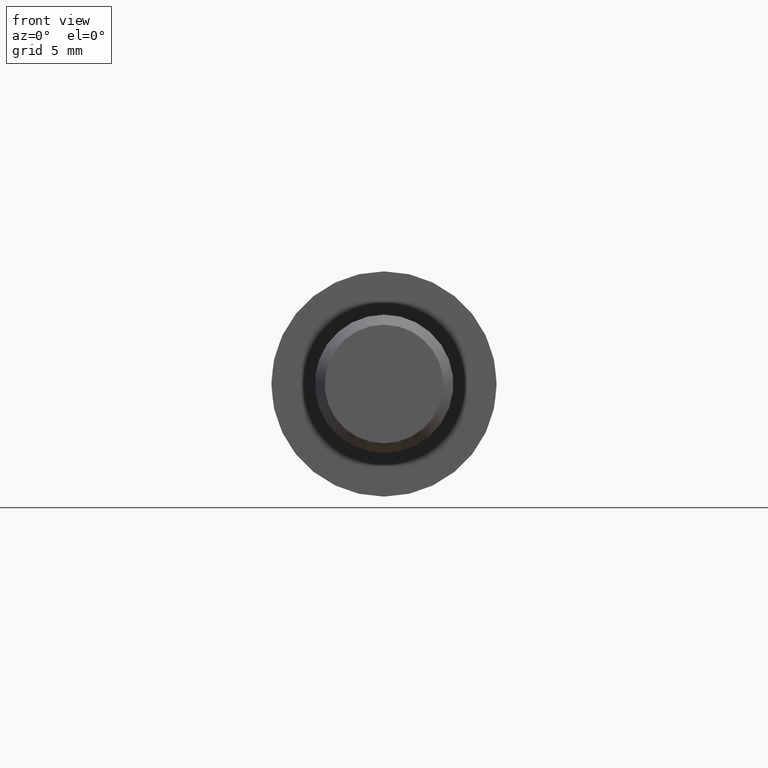
[diagram: clean part render]
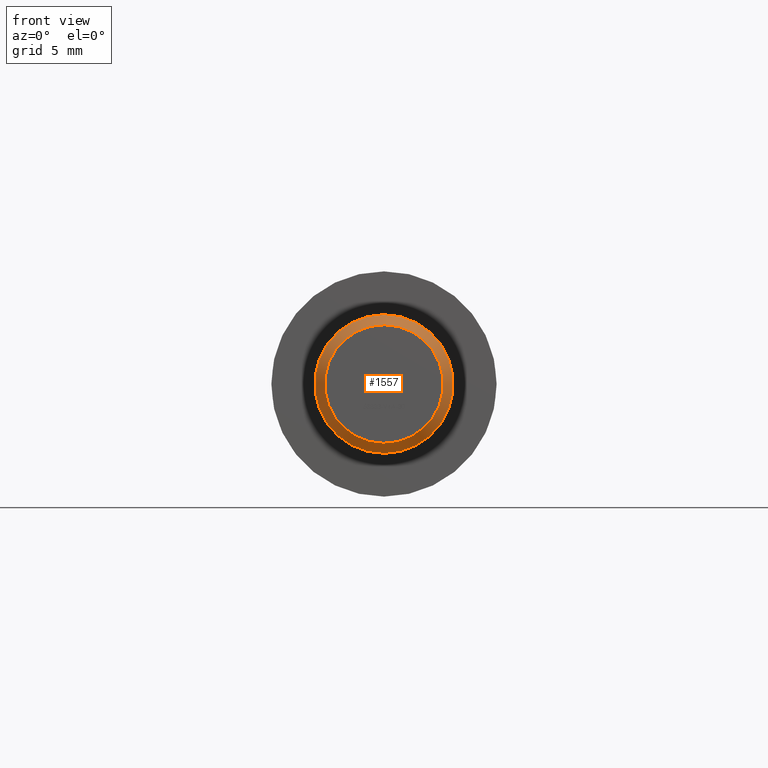
[diagram: same view with one face highlighted and labeled with its STEP entity id]
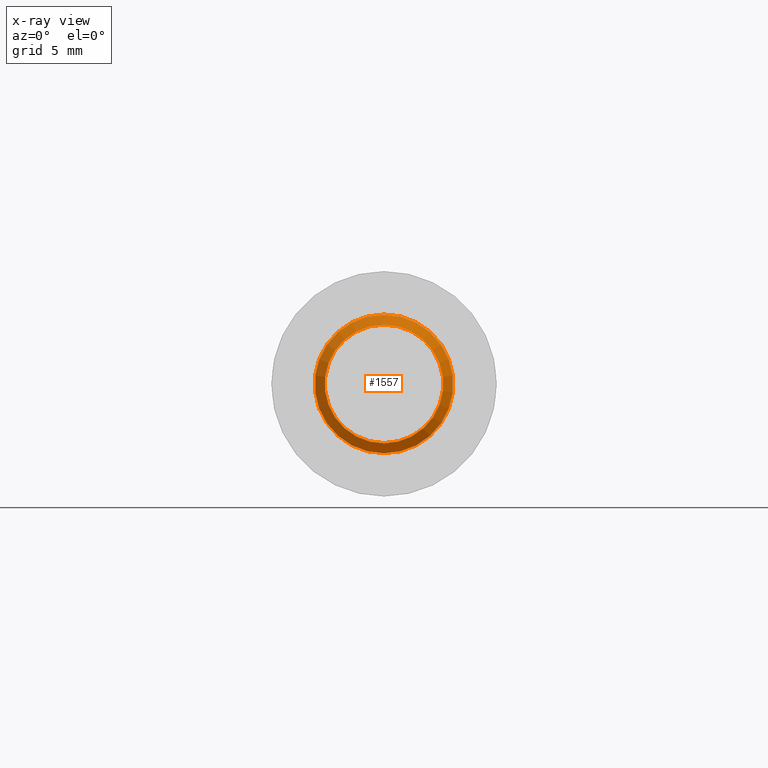
[diagram: x-ray of the same camera — body ghosted, the highlighted face saturated]
A machine part, front view. The second image highlights one B-rep face of the part: STEP entity #1557.
The next image is the same camera in x-ray: the body ghosted, the highlighted face saturated — about 0% of this face is hidden behind the body in this view.
In plain terms, the highlighted conical surface has half-angle 30 deg.
Its self-contained STEP definition (entity closure, byte-faithful):
#148 = EDGE_CURVE ( 'NONE', #8420, #8420, #6561, .T. ) ;
#1557 = ADVANCED_FACE ( 'NONE', ( #3915, #4720 ), #7524, .T. ) ;
#1908 = DIRECTION ( 'NONE',  ( 0.0000000000000000000, 0.0000000000000000000, 1.000000000000000000 ) ) ;
#3915 = FACE_OUTER_BOUND ( 'NONE', #13516, .T. ) ;
#4720 = FACE_BOUND ( 'NONE', #7969, .T. ) ;
#6561 = CIRCLE ( 'NONE', #13746, 4.000000000000000000 ) ;
#7002 = CARTESIAN_POINT ( 'NONE',  ( 0.0000000000000000000, -30.00000000000000000, -3.422649730810370300 ) ) ;
#7003 = CARTESIAN_POINT ( 'NONE',  ( 0.0000000000000000000, -30.00000000000000000, 0.0000000000000000000 ) ) ;
#7058 = DIRECTION ( 'NONE',  ( 0.0000000000000000000, 1.000000000000000000, 0.0000000000000000000 ) ) ;
#7426 = ORIENTED_EDGE ( 'NONE', *, *, #148, .F. ) ;
#7524 = CONICAL_SURFACE ( 'NONE', #15497, 3.422649730810370300, 0.5235987755982969300 ) ;
#7969 = EDGE_LOOP ( 'NONE', ( #12260 ) ) ;
#8420 = VERTEX_POINT ( 'NONE', #13803 ) ;
#8653 = CARTESIAN_POINT ( 'NONE',  ( 0.0000000000000000000, -30.00000000000000000, 0.0000000000000000000 ) ) ;
#11191 = DIRECTION ( 'NONE',  ( 0.0000000000000000000, 1.000000000000000000, 0.0000000000000000000 ) ) ;
#11306 = CARTESIAN_POINT ( 'NONE',  ( 0.0000000000000000000, -28.99999999999998900, 0.0000000000000000000 ) ) ;
#11334 = DIRECTION ( 'NONE',  ( 0.0000000000000000000, -1.000000000000000000, 0.0000000000000000000 ) ) ;
#12039 = VERTEX_POINT ( 'NONE', #7002 ) ;
#12223 = AXIS2_PLACEMENT_3D ( 'NONE', #8653, #11334, #12447 ) ;
#12260 = ORIENTED_EDGE ( 'NONE', *, *, #16006, .F. ) ;
#12447 = DIRECTION ( 'NONE',  ( 0.0000000000000000000, 0.0000000000000000000, -1.000000000000000000 ) ) ;
#13516 = EDGE_LOOP ( 'NONE', ( #7426 ) ) ;
#13746 = AXIS2_PLACEMENT_3D ( 'NONE', #11306, #11191, #16349 ) ;
#13803 = CARTESIAN_POINT ( 'NONE',  ( 0.0000000000000000000, -28.99999999999998900, -4.000000000000000000 ) ) ;
#15236 = CIRCLE ( 'NONE', #12223, 3.422649730810370300 ) ;
#15497 = AXIS2_PLACEMENT_3D ( 'NONE', #7003, #7058, #1908 ) ;
#16006 = EDGE_CURVE ( 'NONE', #12039, #12039, #15236, .T. ) ;
#16349 = DIRECTION ( 'NONE',  ( 0.0000000000000000000, 0.0000000000000000000, -1.000000000000000000 ) ) ;